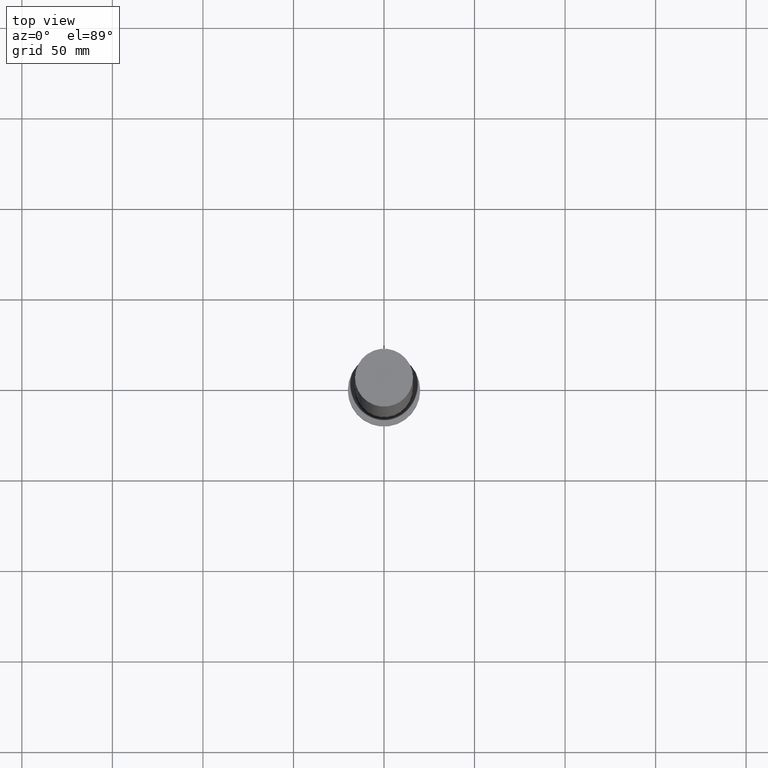
[diagram: clean part render]
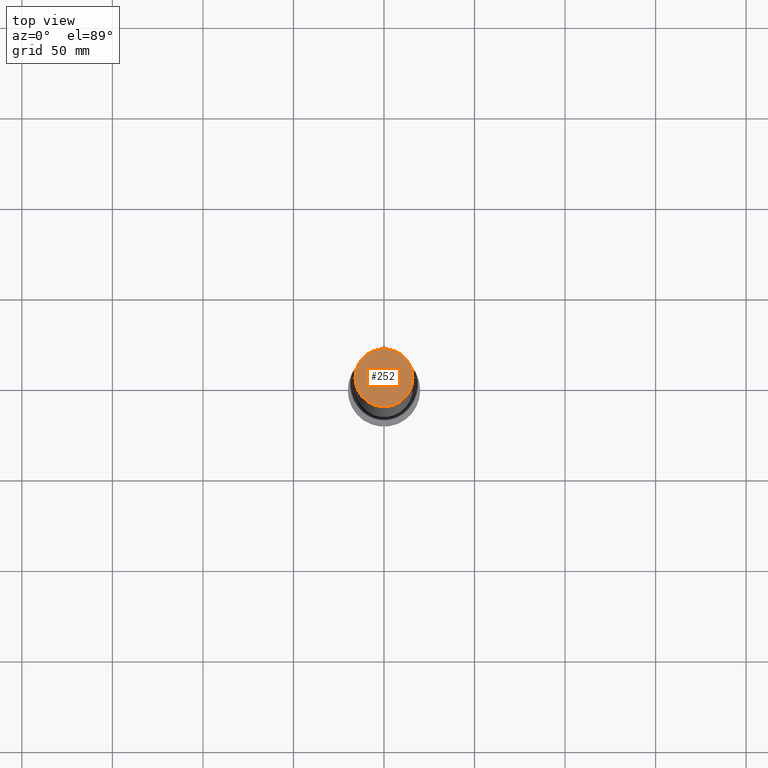
[diagram: same view with one face highlighted and labeled with its STEP entity id]
A machine part, top view. The second image highlights one B-rep face of the part: STEP entity #252.
In plain terms, the highlighted planar face has unit normal (0, 0, 1).
Its self-contained STEP definition (entity closure, byte-faithful):
#2 = PLANE ( 'NONE',  #54 ) ;
#16 = EDGE_CURVE ( 'NONE', #123, #74, #112, .T. ) ;
#21 = AXIS2_PLACEMENT_3D ( 'NONE', #213, #195, #233 ) ;
#23 = CARTESIAN_POINT ( 'NONE',  ( 0.000000000000000000, 0.000000000000000000, 400.0000000000000000 ) ) ;
#24 = DIRECTION ( 'NONE',  ( 0.000000000000000000, 0.000000000000000000, 1.000000000000000000 ) ) ;
#33 = ORIENTED_EDGE ( 'NONE', *, *, #227, .T. ) ;
#42 = DIRECTION ( 'NONE',  ( 1.000000000000000000, 0.000000000000000000, 0.000000000000000000 ) ) ;
#54 = AXIS2_PLACEMENT_3D ( 'NONE', #140, #199, #95 ) ;
#58 = EDGE_LOOP ( 'NONE', ( #211, #33 ) ) ;
#74 = VERTEX_POINT ( 'NONE', #92 ) ;
#75 = AXIS2_PLACEMENT_3D ( 'NONE', #23, #24, #42 ) ;
#92 = CARTESIAN_POINT ( 'NONE',  ( 16.00000000000000000, 1.959434878635765131E-15, 400.0000000000000000 ) ) ;
#95 = DIRECTION ( 'NONE',  ( 1.000000000000000000, 0.000000000000000000, -0.000000000000000000 ) ) ;
#112 = CIRCLE ( 'NONE', #21, 16.00000000000000000 ) ;
#114 = CARTESIAN_POINT ( 'NONE',  ( -16.00000000000000000, 0.000000000000000000, 400.0000000000000000 ) ) ;
#123 = VERTEX_POINT ( 'NONE', #114 ) ;
#140 = CARTESIAN_POINT ( 'NONE',  ( 0.000000000000000000, 0.000000000000000000, 400.0000000000000000 ) ) ;
#160 = CIRCLE ( 'NONE', #75, 16.00000000000000000 ) ;
#195 = DIRECTION ( 'NONE',  ( 0.000000000000000000, 0.000000000000000000, 1.000000000000000000 ) ) ;
#199 = DIRECTION ( 'NONE',  ( 0.000000000000000000, 0.000000000000000000, 1.000000000000000000 ) ) ;
#204 = FACE_OUTER_BOUND ( 'NONE', #58, .T. ) ;
#211 = ORIENTED_EDGE ( 'NONE', *, *, #16, .T. ) ;
#213 = CARTESIAN_POINT ( 'NONE',  ( 0.000000000000000000, 0.000000000000000000, 400.0000000000000000 ) ) ;
#227 = EDGE_CURVE ( 'NONE', #74, #123, #160, .T. ) ;
#233 = DIRECTION ( 'NONE',  ( 1.000000000000000000, 0.000000000000000000, 0.000000000000000000 ) ) ;
#252 = ADVANCED_FACE ( 'NONE', ( #204 ), #2, .T. ) ;